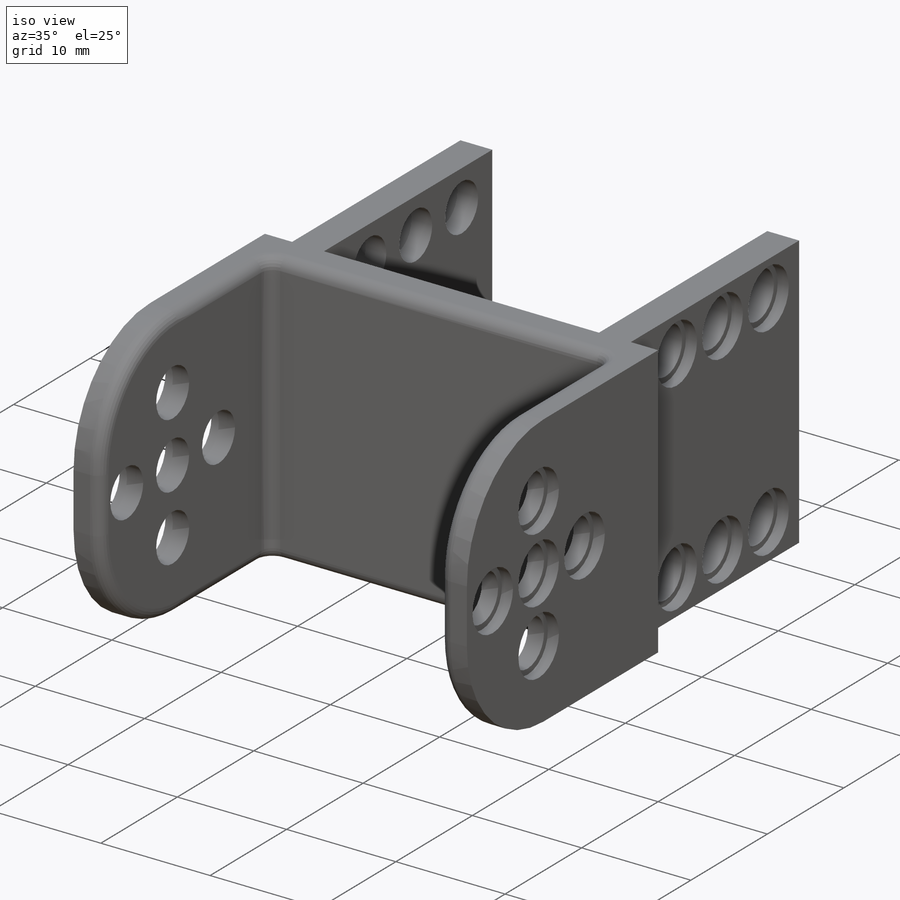
[diagram: iso view]
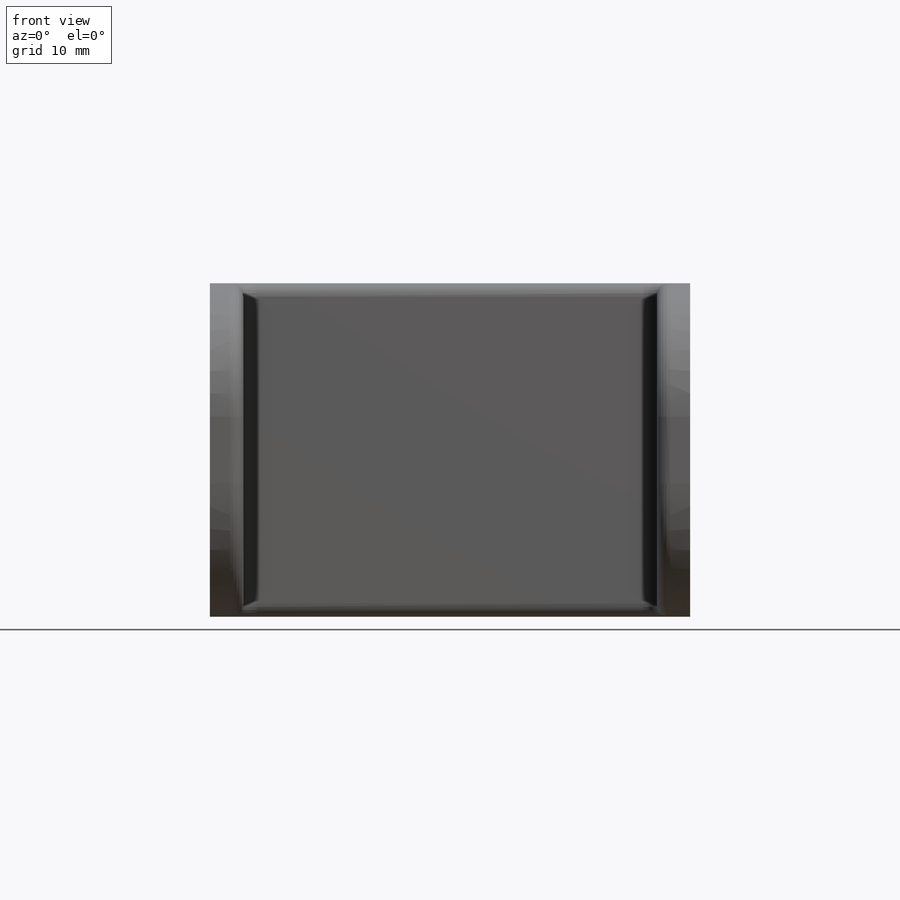
[diagram: front view]
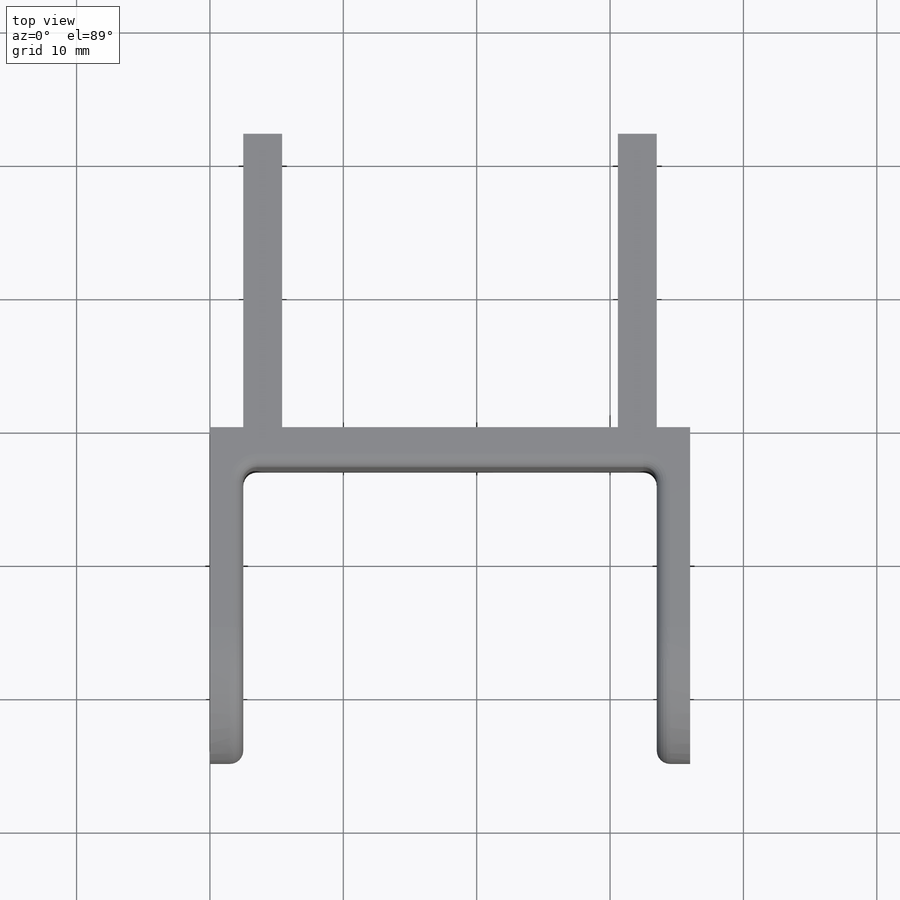
[diagram: top view]
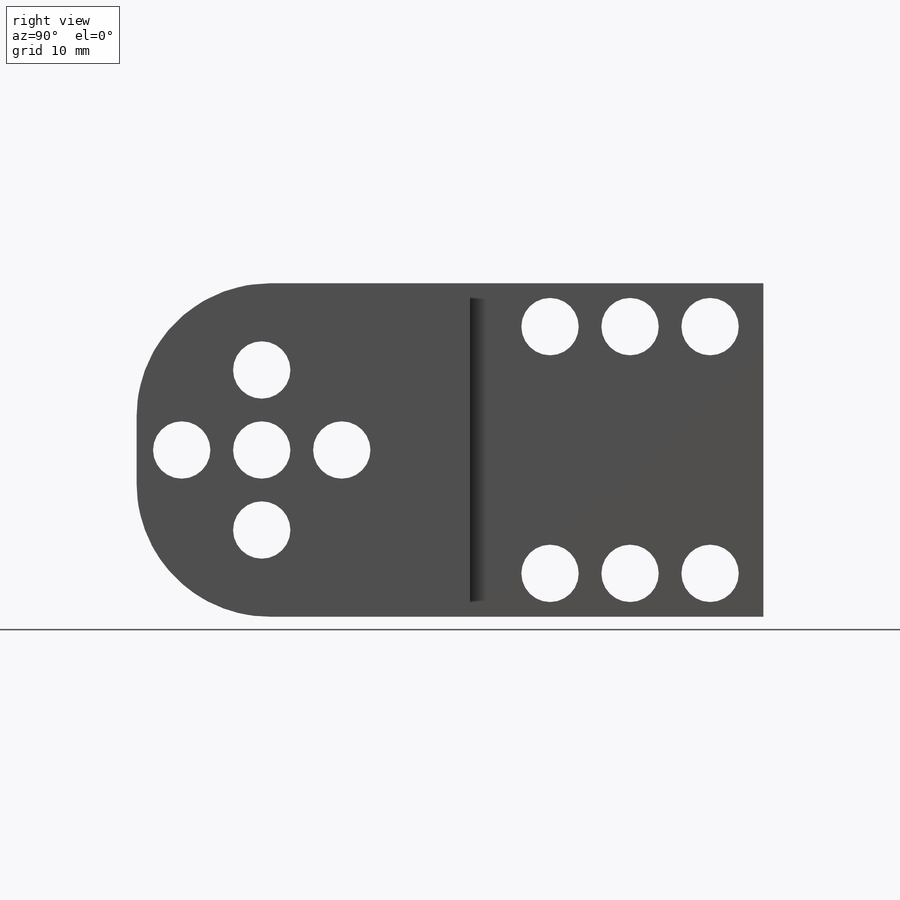
[diagram: right view]
SOLIDWORKS PART (.sldprt)
format: sldprt  version: not decoded by parser v0  size: 826,880 bytes
history: native  units: mm
features: sketch x11, cut_extrude x8, fillet x4, plane x3, extrude x2, material x1 (+9 scaffold rows collapsed)
feature tree (38):
  scaffold x9  (default folders/planes/origin — collapsed)
  material  "Material <sin especificar>"
  plane  "Alzado"
  plane  "Planta"
  plane  "Vista lateral"
  sketch  "Croquis1"  dims[c1.D1=~25.023942mm c1.D2=~52.328194mm c2.D1=36.0mm c2.D2=25.0mm]
  extrude  "Saliente-Extruir1"  Depth=25mm
  sketch  "Croquis2"  dims[c1.D1=25.0mm c1.D2=~28.089127mm c2.D1=31.0mm]
  cut_extrude  "Cortar-Extruir1"  Depth=22mm
  sketch  "Croquis3"  dims[c1.D2=5.3mm c1.D3=5.3mm c1.D4=4.3mm c1.D5=4.3mm c1.D6=4.3mm c1.D1=7.0mm c2.D2=6.0mm]
  cut_extrude  "Cortar-Extruir2"  [1 undecoded]
  cut_extrude  "Cortar-Extruir3"  [1 undecoded]
  sketch  "Croquis3<3>"  dims[D1=1.015mm]
  sketch  "Croquis4"  dims[D1=5.3mm]
  cut_extrude  "Cortar-Extruir4"  Depth=1.015mm
  sketch  "Croquis5"  dims[c1.D1=25.0mm c1.D2=~25.187047mm c2.D1=31.0mm]
  extrude  "Saliente-Extruir2"  Depth=22mm
  sketch  "Croquis6"  dims[c1.D1=25.0mm c1.D2=~21.70137mm c2.D1=25.17mm]
  cut_extrude  "Cortar-Extruir5"  Depth=22mm
  sketch  "Croquis7"  dims[D1=~2.687836mm]
  sketch  "Croquis8"  dims[D1=2.5mm]
  cut_extrude  "Cortar-Extruir6"  [1 undecoded]
  cut_extrude  "Cortar-Extruir7"  [1 undecoded]
  sketch  "Croquis8<3>"  dims[D1=1.015mm]
  sketch  "Croquis10"  dims[D1=2.5mm]
  cut_extrude  "Cortar-Extruir8"  Depth=1.015mm
  fillet  "Redondeo2"  Radius=10mm
  fillet  "Redondeo3"  Radius=1mm
  fillet  "Redondeo4"  Radius=1mm
  fillet  "Redondeo5"  Radius=1mm
decode coverage: 21 of 25 modeling features carry decoded parameters
note: ~ marks probable driven/reference dimensions
note: 4 parameter values undecoded
summary: no parameter record found for 4 features
note: suppression state not decoded; provenance and decode notes live in map.json
